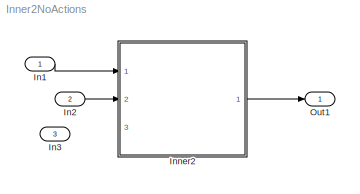
MODEL Inner2NoActions
KIND model
BLOCK [Inport] In1
  IconDisplay = Port number
  OutDataTypeStr = boolean
  SID = 22
BLOCK [Inport] In2
  IconDisplay = Port number
  OutDataTypeStr = boolean
  Port = 2
  SID = 23
BLOCK [Inport] In3
  IconDisplay = Port number
  OutDataTypeStr = boolean
  Port = 3
  SID = 24
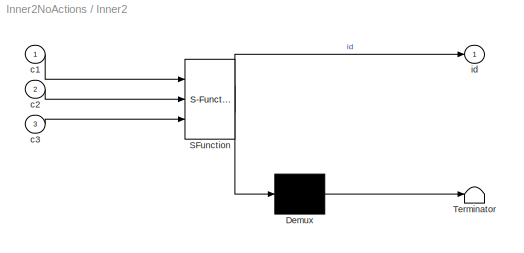
BLOCK [SubSystem] Inner2
  ErrorFcn = Stateflow.Translate.translate
  PermitHierarchicalResolution = ExplicitOnly
  Ports = [3, 1]
  RequestExecContextInheritance = off
  SFBlockType = Chart
  SID = 1
  TreatAsAtomicUnit = on
  Variant = off
BLOCK [Demux] Inner2/ Demux 
  Outputs = 1
  Ports = [1, 1]
  SID = 1::21
BLOCK [S-Function] Inner2/ SFunction 
  EnableBusSupport = on
  FunctionName = sf_sfun
  PortCounts = [3 2]
  Ports = [3, 2]
  SFcnIsStateOwnerBlock = off
  SFunctionDeploymentMode = off
  SID = 1::20
  Tag = Stateflow S-Function Inner2NoActions 1
BLOCK [Terminator] Inner2/ Terminator 
  SID = 1::22
BLOCK [Inport] Inner2/c1
  IconDisplay = Port number
  SID = 1::23
BLOCK [Inport] Inner2/c2
  IconDisplay = Port number
  Port = 2
  SID = 1::24
BLOCK [Inport] Inner2/c3
  IconDisplay = Port number
  Port = 3
  SID = 1::25
BLOCK [Outport] Inner2/id
  IconDisplay = Port number
  SID = 1::26
BLOCK [Outport] Out1
  IconDisplay = Port number
  SID = 20
LINE In1:1 -> Inner2:1
LINE In2:1 -> Inner2:2
LINE Inner2/ Demux :1 -> Inner2/ Terminator :1
LINE Inner2/ SFunction :1 -> Inner2/ Demux :1
LINE Inner2/ SFunction :2 -> Inner2/id:1
LINE Inner2/c1:1 -> Inner2/ SFunction :1
LINE Inner2/c2:1 -> Inner2/ SFunction :2
LINE Inner2/c3:1 -> Inner2/ SFunction :3
LINE Inner2:1 -> Out1:1
CHART Inner2 states=3 transitions=5
  STATE_LABEL 'A/\\nen: id=1;'
  STATE_LABEL 'A1/\\nen: id=2;'
  STATE_LABEL 'A2/\\nen: id=3;'
